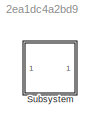
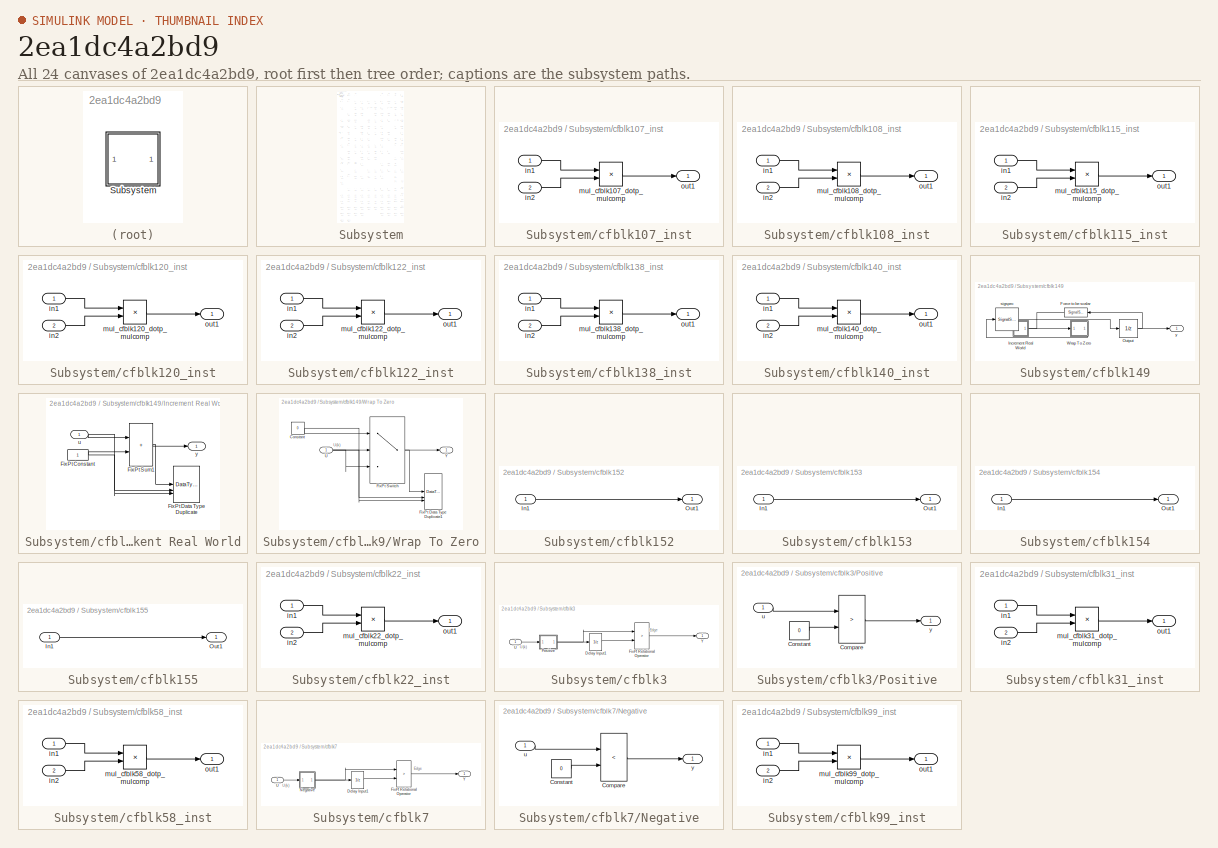
[diagram: thumbnail index - all 24 canvases of the model, root first then tree order]
MODEL slx_2ea1dc4a2bd9
KIND model
CONFIG AbsTol = auto
CONFIG EnableMultiTasking = off
CONFIG FixedStep = auto
CONFIG MaxStep = auto
CONFIG MinStep = auto
CONFIG RelTol = 1e-3
CONFIG SampleTimeConstraint = Unconstrained
CONFIG SolverName = VariableStepAuto
CONFIG StartTime = 0.0
CONFIG StopTime = 10.0
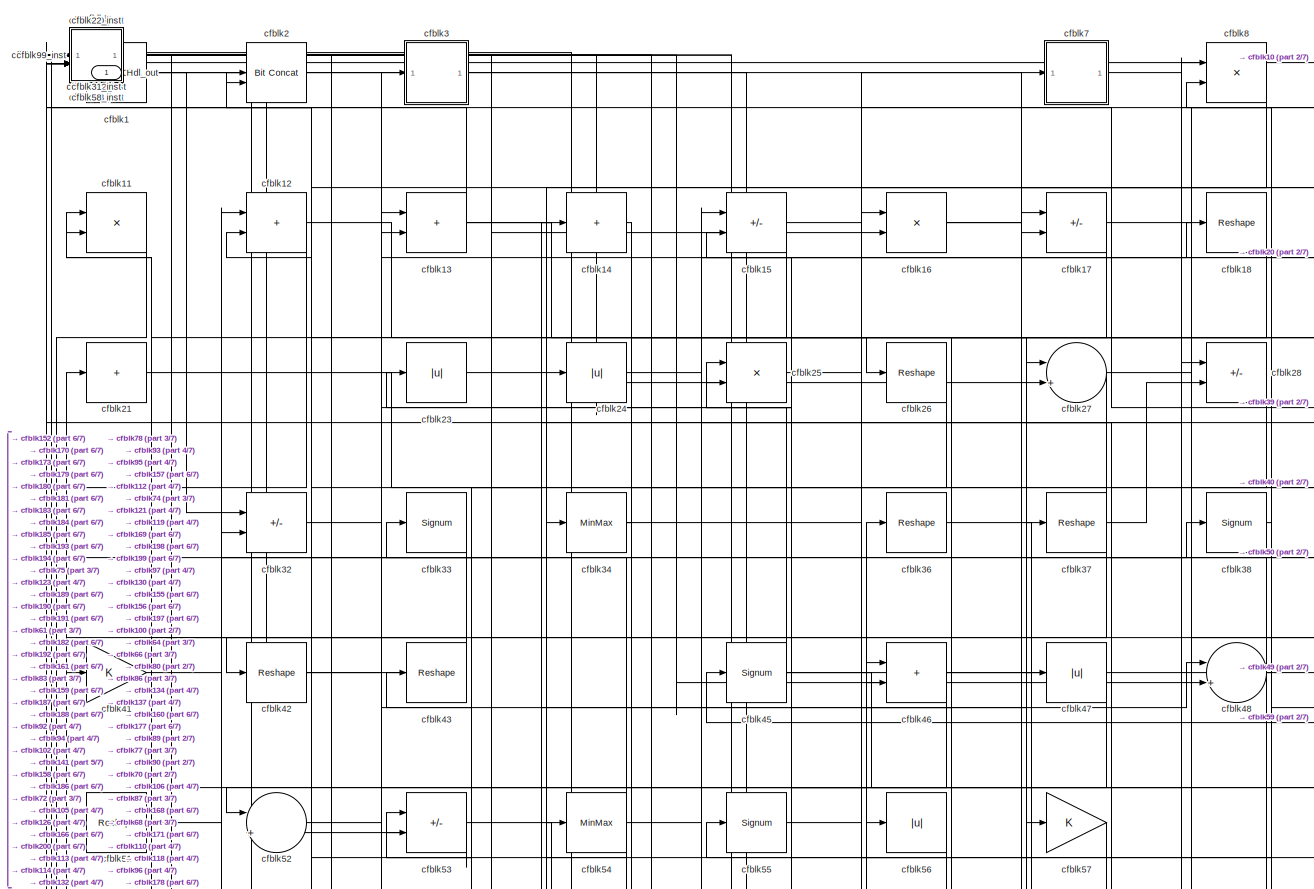
[diagram: Subsystem - part 1/7, full width, top band]
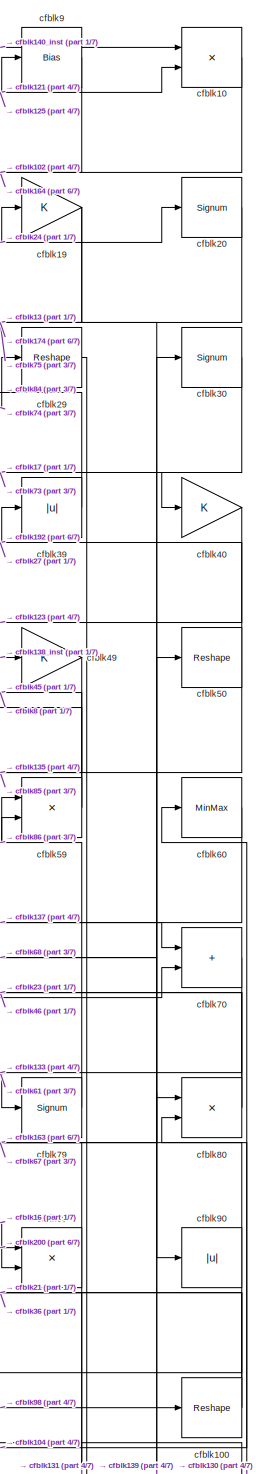
[diagram: Subsystem - part 2/7, top right region]
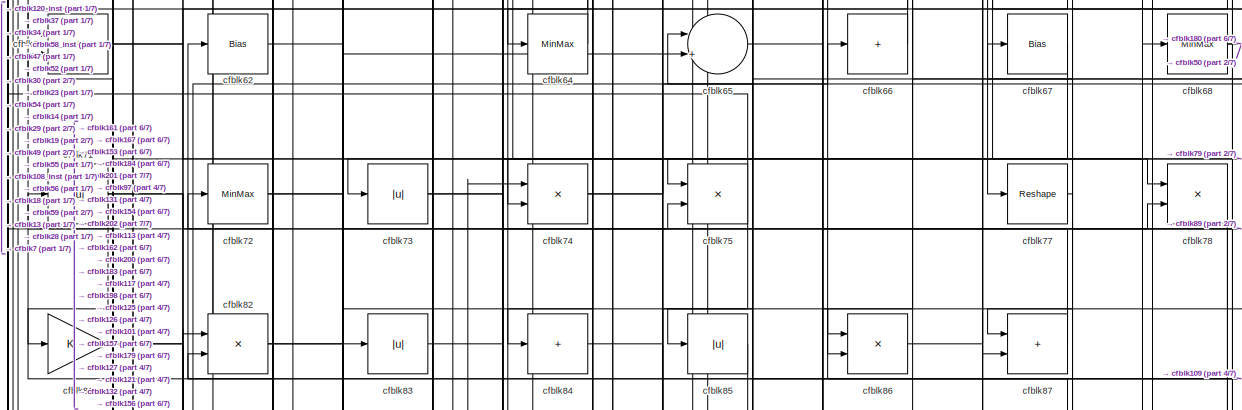
[diagram: Subsystem - part 3/7, full width, middle band]
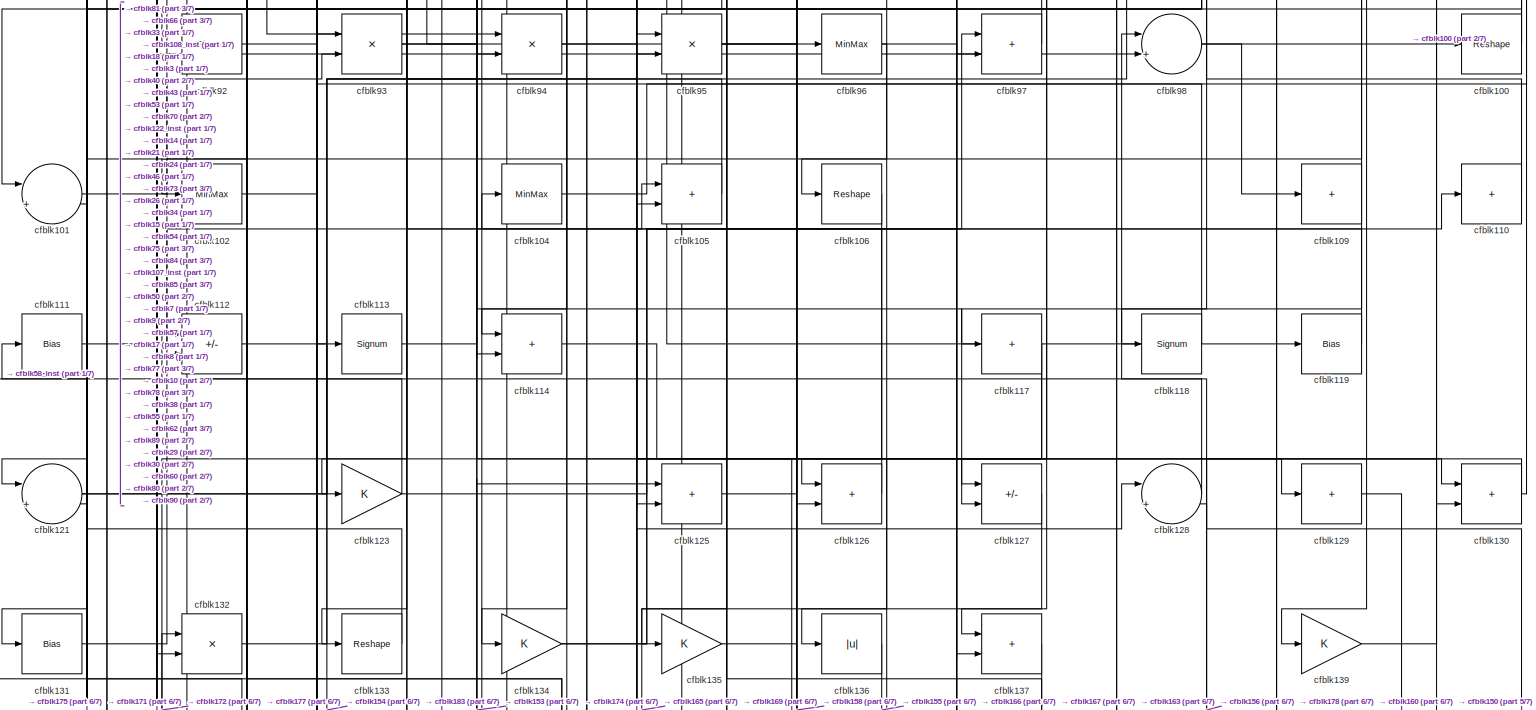
[diagram: Subsystem - part 4/7, full width, middle band]
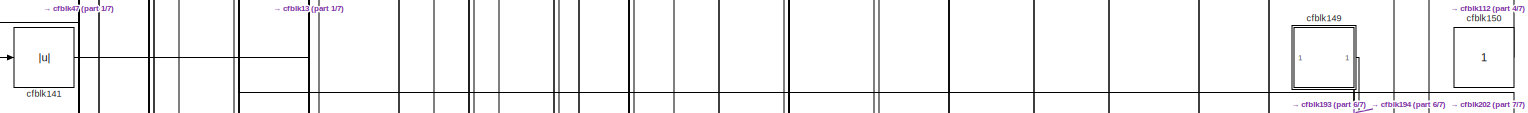
[diagram: Subsystem - part 5/7, full width, bottom band]
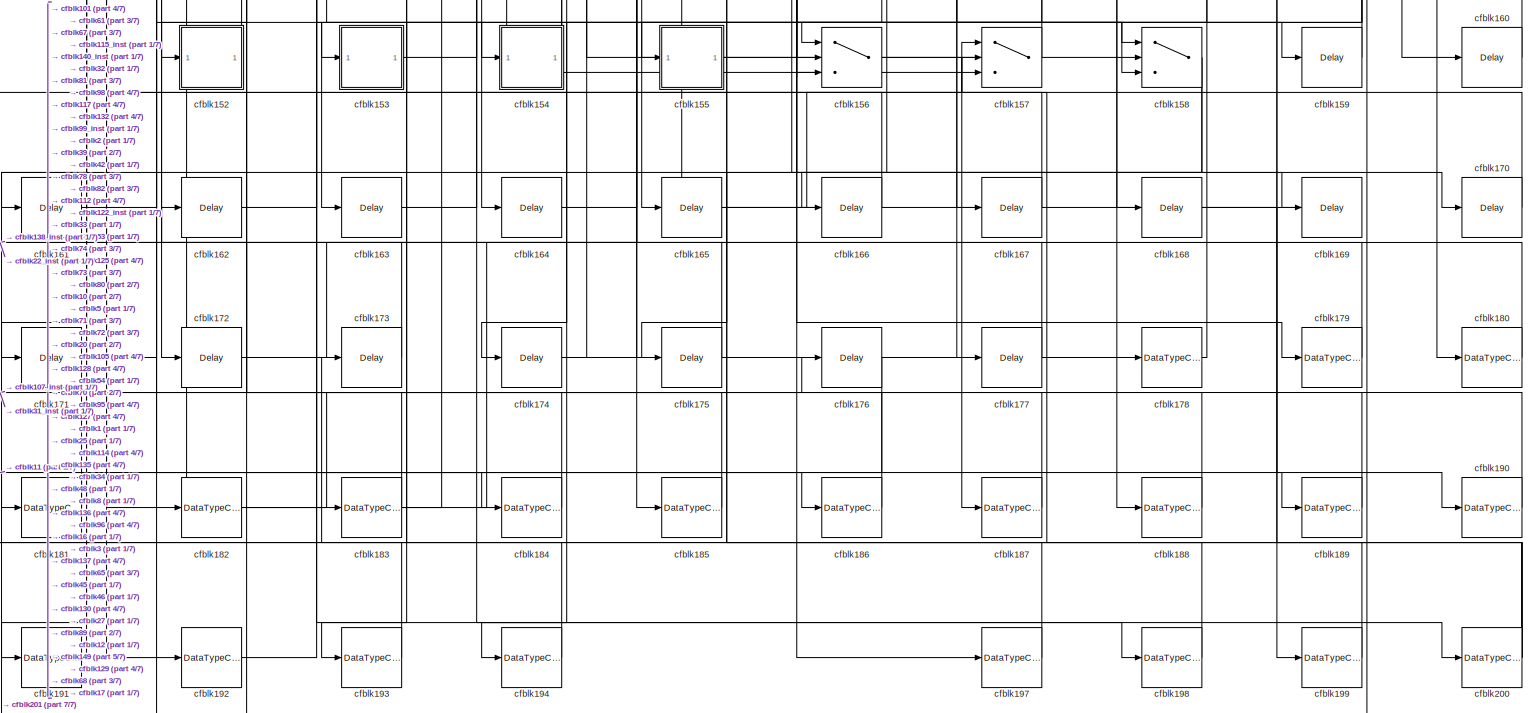
[diagram: Subsystem - part 6/7, full width, bottom band]
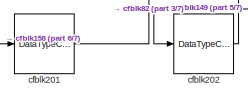
[diagram: Subsystem - part 7/7, bottom left region]
BLOCK [SubSystem] Subsystem
BLOCK [Outport] Subsystem/Hdl_out
  OutDataTypeStr = uint8
  SampleTime = 1
BLOCK [Reference] Subsystem/cfblk1  REF=simulink/Logic and Bit
Operations/Detect
Change
  LibrarySourceBlock = hdlsllib/Logic and Bit\nOperations/Detect\nChange
  SourceBlock = simulink/Logic and Bit\nOperations/Detect\nChange
  SourceType = Detect Change
BLOCK [Product] Subsystem/cfblk10
  Inputs = */
  OutDataTypeStr = uint8
  RndMeth = Zero
  SaturateOnIntegerOverflow = on
BLOCK [Reshape] Subsystem/cfblk100
BLOCK [Sum] Subsystem/cfblk101
  Inputs = |++
  OutDataTypeStr = uint8
BLOCK [MinMax] Subsystem/cfblk102
  OutDataTypeStr = uint8
BLOCK [MinMax] Subsystem/cfblk104
  OutDataTypeStr = uint8
BLOCK [Sum] Subsystem/cfblk105
  IconShape = rectangular
  OutDataTypeStr = uint8
BLOCK [Reshape] Subsystem/cfblk106
BLOCK [SubSystem] Subsystem/cfblk107_inst
BLOCK [Inport] Subsystem/cfblk107_inst/in1
  OutDataTypeStr = uint8
  SampleTime = 1
BLOCK [Inport] Subsystem/cfblk107_inst/in2
  OutDataTypeStr = uint8
  Port = 2
  SampleTime = 1
BLOCK [Product] Subsystem/cfblk107_inst/mul_cfblk107_dotp_mulcomp
  Inputs = **
  OutDataTypeStr = uint8
  SampleTime = 1
BLOCK [Outport] Subsystem/cfblk107_inst/out1
  OutDataTypeStr = uint8
  SampleTime = 1
BLOCK [SubSystem] Subsystem/cfblk108_inst
BLOCK [Inport] Subsystem/cfblk108_inst/in1
  OutDataTypeStr = uint8
  SampleTime = 1
BLOCK [Inport] Subsystem/cfblk108_inst/in2
  OutDataTypeStr = uint8
  Port = 2
  SampleTime = 1
BLOCK [Product] Subsystem/cfblk108_inst/mul_cfblk108_dotp_mulcomp
  Inputs = **
  OutDataTypeStr = uint8
  SampleTime = 1
BLOCK [Outport] Subsystem/cfblk108_inst/out1
  OutDataTypeStr = uint8
  SampleTime = 1
BLOCK [Sum] Subsystem/cfblk109
  IconShape = rectangular
  Inputs = +
  OutDataTypeStr = uint8
BLOCK [Product] Subsystem/cfblk11
  Inputs = */
  OutDataTypeStr = uint8
  RndMeth = Zero
  SaturateOnIntegerOverflow = on
BLOCK [Sum] Subsystem/cfblk110
  IconShape = rectangular
  Inputs = +
  OutDataTypeStr = uint8
BLOCK [Bias] Subsystem/cfblk111
  Bias = 0.0
  SaturateOnIntegerOverflow = off
BLOCK [Sum] Subsystem/cfblk112
  IconShape = rectangular
  Inputs = +-
  OutDataTypeStr = uint8
BLOCK [Signum] Subsystem/cfblk113
BLOCK [Sum] Subsystem/cfblk114
  IconShape = rectangular
  OutDataTypeStr = uint8
BLOCK [SubSystem] Subsystem/cfblk115_inst
BLOCK [Inport] Subsystem/cfblk115_inst/in1
  OutDataTypeStr = uint8
  SampleTime = 1
BLOCK [Inport] Subsystem/cfblk115_inst/in2
  OutDataTypeStr = uint8
  Port = 2
  SampleTime = 1
BLOCK [Product] Subsystem/cfblk115_inst/mul_cfblk115_dotp_mulcomp
  Inputs = **
  OutDataTypeStr = uint8
  SampleTime = 1
BLOCK [Outport] Subsystem/cfblk115_inst/out1
  OutDataTypeStr = uint8
  SampleTime = 1
BLOCK [Sum] Subsystem/cfblk117
  IconShape = rectangular
  Inputs = +
  OutDataTypeStr = uint8
BLOCK [Signum] Subsystem/cfblk118
BLOCK [Bias] Subsystem/cfblk119
  Bias = 0.0
  SaturateOnIntegerOverflow = off
BLOCK [Sum] Subsystem/cfblk12
  IconShape = rectangular
  OutDataTypeStr = uint8
BLOCK [SubSystem] Subsystem/cfblk120_inst
BLOCK [Inport] Subsystem/cfblk120_inst/in1
  OutDataTypeStr = uint8
  SampleTime = 1
BLOCK [Inport] Subsystem/cfblk120_inst/in2
  OutDataTypeStr = uint8
  Port = 2
  SampleTime = 1
BLOCK [Product] Subsystem/cfblk120_inst/mul_cfblk120_dotp_mulcomp
  Inputs = **
  OutDataTypeStr = uint8
  SampleTime = 1
BLOCK [Outport] Subsystem/cfblk120_inst/out1
  OutDataTypeStr = uint8
  SampleTime = 1
BLOCK [Sum] Subsystem/cfblk121
  Inputs = |++
  OutDataTypeStr = uint8
BLOCK [SubSystem] Subsystem/cfblk122_inst
BLOCK [Inport] Subsystem/cfblk122_inst/in1
  OutDataTypeStr = uint8
  SampleTime = 1
BLOCK [Inport] Subsystem/cfblk122_inst/in2
  OutDataTypeStr = uint8
  Port = 2
  SampleTime = 1
BLOCK [Product] Subsystem/cfblk122_inst/mul_cfblk122_dotp_mulcomp
  Inputs = **
  OutDataTypeStr = uint8
  SampleTime = 1
BLOCK [Outport] Subsystem/cfblk122_inst/out1
  OutDataTypeStr = uint8
  SampleTime = 1
BLOCK [Gain] Subsystem/cfblk123
  OutDataTypeStr = uint8
BLOCK [Sum] Subsystem/cfblk125
  IconShape = rectangular
  OutDataTypeStr = uint8
BLOCK [Sum] Subsystem/cfblk126
  IconShape = rectangular
  OutDataTypeStr = uint8
BLOCK [Sum] Subsystem/cfblk127
  IconShape = rectangular
  Inputs = +-
  OutDataTypeStr = uint8
BLOCK [Sum] Subsystem/cfblk128
  Inputs = |++
  OutDataTypeStr = uint8
BLOCK [Sum] Subsystem/cfblk129
  IconShape = rectangular
  Inputs = +
  OutDataTypeStr = uint8
BLOCK [Sum] Subsystem/cfblk13
  IconShape = rectangular
  OutDataTypeStr = uint8
BLOCK [Sum] Subsystem/cfblk130
  IconShape = rectangular
  OutDataTypeStr = uint8
BLOCK [Bias] Subsystem/cfblk131
  Bias = 0.0
  SaturateOnIntegerOverflow = off
BLOCK [Product] Subsystem/cfblk132
  Inputs = */
  OutDataTypeStr = uint8
  RndMeth = Zero
  SaturateOnIntegerOverflow = on
BLOCK [Reshape] Subsystem/cfblk133
BLOCK [Gain] Subsystem/cfblk134
  OutDataTypeStr = uint8
BLOCK [Gain] Subsystem/cfblk135
  OutDataTypeStr = uint8
BLOCK [Abs] Subsystem/cfblk136
  OutDataTypeStr = uint8
  SaturateOnIntegerOverflow = off
BLOCK [Sum] Subsystem/cfblk137
  IconShape = rectangular
  OutDataTypeStr = uint8
BLOCK [SubSystem] Subsystem/cfblk138_inst
BLOCK [Inport] Subsystem/cfblk138_inst/in1
  OutDataTypeStr = uint8
  SampleTime = 1
BLOCK [Inport] Subsystem/cfblk138_inst/in2
  OutDataTypeStr = uint8
  Port = 2
  SampleTime = 1
BLOCK [Product] Subsystem/cfblk138_inst/mul_cfblk138_dotp_mulcomp
  Inputs = **
  OutDataTypeStr = uint8
  SampleTime = 1
BLOCK [Outport] Subsystem/cfblk138_inst/out1
  OutDataTypeStr = uint8
  SampleTime = 1
BLOCK [Gain] Subsystem/cfblk139
  OutDataTypeStr = uint8
BLOCK [Sum] Subsystem/cfblk14
  IconShape = rectangular
  Inputs = +
  OutDataTypeStr = uint8
BLOCK [SubSystem] Subsystem/cfblk140_inst
BLOCK [Inport] Subsystem/cfblk140_inst/in1
  OutDataTypeStr = uint8
  SampleTime = 1
BLOCK [Inport] Subsystem/cfblk140_inst/in2
  OutDataTypeStr = uint8
  Port = 2
  SampleTime = 1
BLOCK [Product] Subsystem/cfblk140_inst/mul_cfblk140_dotp_mulcomp
  Inputs = **
  OutDataTypeStr = uint8
  SampleTime = 1
BLOCK [Outport] Subsystem/cfblk140_inst/out1
  OutDataTypeStr = uint8
  SampleTime = 1
BLOCK [Abs] Subsystem/cfblk141
  OutDataTypeStr = uint8
  SaturateOnIntegerOverflow = off
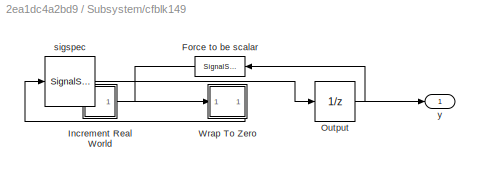
BLOCK [SubSystem] Subsystem/cfblk149
BLOCK [SignalSpecification] Subsystem/cfblk149/Force to be scalar
  Dimensions = 1
  DisableCoverage = on
BLOCK [SubSystem] Subsystem/cfblk149/Increment Real World
BLOCK [Constant] Subsystem/cfblk149/Increment Real World/FixPt Constant
  DisableCoverage = on
  OutDataTypeStr = Inherit: Inherit via back propagation
  SampleTime = -1
BLOCK [DataTypeDuplicate] Subsystem/cfblk149/Increment Real World/FixPt Data Type Duplicate
  DisableCoverage = on
  NumInputPorts = 3
BLOCK [Sum] Subsystem/cfblk149/Increment Real World/FixPt Sum1
  IconShape = rectangular
  InputSameDT = on
  LockScale = on
  OutDataTypeStr = Inherit: Inherit via back propagation
BLOCK [Inport] Subsystem/cfblk149/Increment Real World/u
  OutDataTypeStr = uint8
  SampleTime = 1
BLOCK [Outport] Subsystem/cfblk149/Increment Real World/y
  SampleTime = 1
BLOCK [UnitDelay] Subsystem/cfblk149/Output
  HasFrameUpgradeWarning = on
  InitialCondition = 0.0
  SampleTime = tsamp
BLOCK [SubSystem] Subsystem/cfblk149/Wrap To Zero
BLOCK [Constant] Subsystem/cfblk149/Wrap To Zero/Constant
  DisableCoverage = on
  OutDataTypeStr = Inherit: Inherit via back propagation
  SampleTime = -1
  Value = 0
BLOCK [DataTypeDuplicate] Subsystem/cfblk149/Wrap To Zero/FixPt Data Type Duplicate1
  DisableCoverage = on
  NumInputPorts = 3
BLOCK [Switch] Subsystem/cfblk149/Wrap To Zero/FixPt Switch
  Criteria = u2 > Threshold
  InputSameDT = off
  OutDataTypeStr = Inherit: Inherit via back propagation
  SaturateOnIntegerOverflow = off
  Threshold = Threshold
  ZeroCross = off
BLOCK [Inport] Subsystem/cfblk149/Wrap To Zero/U
  OutDataTypeStr = uint8
  SampleTime = 1
BLOCK [Outport] Subsystem/cfblk149/Wrap To Zero/Y
  SampleTime = 1
BLOCK [SignalSpecification] Subsystem/cfblk149/sigspec
  Dimensions = 1
  OutDataTypeStr = uint8
BLOCK [Outport] Subsystem/cfblk149/y
  SampleTime = 1
BLOCK [Sum] Subsystem/cfblk15
  IconShape = rectangular
  Inputs = +-
  OutDataTypeStr = uint8
BLOCK [Constant] Subsystem/cfblk150
  OutDataTypeStr = uint8
  SampleTime = -1
BLOCK [SubSystem] Subsystem/cfblk152
BLOCK [Inport] Subsystem/cfblk152/In1
  OutDataTypeStr = uint8
  PortDimensions = 1
  SampleTime = 1
BLOCK [Outport] Subsystem/cfblk152/Out1
  SampleTime = 1
BLOCK [SubSystem] Subsystem/cfblk153
BLOCK [Inport] Subsystem/cfblk153/In1
  OutDataTypeStr = uint8
  PortDimensions = 1
  SampleTime = 1
BLOCK [Outport] Subsystem/cfblk153/Out1
  SampleTime = 1
BLOCK [SubSystem] Subsystem/cfblk154
BLOCK [Inport] Subsystem/cfblk154/In1
  OutDataTypeStr = uint8
  PortDimensions = 1
  SampleTime = 1
BLOCK [Outport] Subsystem/cfblk154/Out1
  SampleTime = 1
BLOCK [SubSystem] Subsystem/cfblk155
BLOCK [Inport] Subsystem/cfblk155/In1
  OutDataTypeStr = uint8
  PortDimensions = 1
  SampleTime = 1
BLOCK [Outport] Subsystem/cfblk155/Out1
  SampleTime = 1
BLOCK [Switch] Subsystem/cfblk156
  InputSameDT = off
  OutDataTypeStr = uint8
  SaturateOnIntegerOverflow = off
BLOCK [Switch] Subsystem/cfblk157
  InputSameDT = off
  OutDataTypeStr = uint8
  SaturateOnIntegerOverflow = off
BLOCK [Switch] Subsystem/cfblk158
  InputSameDT = off
  OutDataTypeStr = uint8
  SaturateOnIntegerOverflow = off
BLOCK [Delay] Subsystem/cfblk159
  InputPortMap = u0
  SampleTime = 1
BLOCK [Product] Subsystem/cfblk16
  Inputs = */
  OutDataTypeStr = uint8
  RndMeth = Zero
  SaturateOnIntegerOverflow = on
BLOCK [Delay] Subsystem/cfblk160
  InputPortMap = u0
  SampleTime = 1
BLOCK [Delay] Subsystem/cfblk161
  InputPortMap = u0
  SampleTime = 1
BLOCK [Delay] Subsystem/cfblk162
  InputPortMap = u0
  SampleTime = 1
BLOCK [Delay] Subsystem/cfblk163
  InputPortMap = u0
  SampleTime = 1
BLOCK [Delay] Subsystem/cfblk164
  InputPortMap = u0
  SampleTime = 1
BLOCK [Delay] Subsystem/cfblk165
  InputPortMap = u0
  SampleTime = 1
BLOCK [Delay] Subsystem/cfblk166
  InputPortMap = u0
  SampleTime = 1
BLOCK [Delay] Subsystem/cfblk167
  InputPortMap = u0
  SampleTime = 1
BLOCK [Delay] Subsystem/cfblk168
  InputPortMap = u0
  SampleTime = 1
BLOCK [Delay] Subsystem/cfblk169
  InputPortMap = u0
  SampleTime = 1
BLOCK [Sum] Subsystem/cfblk17
  IconShape = rectangular
  Inputs = +-
  OutDataTypeStr = uint8
BLOCK [Delay] Subsystem/cfblk170
  InputPortMap = u0
  SampleTime = 1
BLOCK [Delay] Subsystem/cfblk171
  InputPortMap = u0
  SampleTime = 1
BLOCK [Delay] Subsystem/cfblk172
  InputPortMap = u0
  SampleTime = 1
BLOCK [Delay] Subsystem/cfblk173
  InputPortMap = u0
  SampleTime = 1
BLOCK [Delay] Subsystem/cfblk174
  InputPortMap = u0
  SampleTime = 1
BLOCK [Delay] Subsystem/cfblk175
  InputPortMap = u0
  SampleTime = 1
BLOCK [Delay] Subsystem/cfblk176
  InputPortMap = u0
  SampleTime = 1
BLOCK [Delay] Subsystem/cfblk177
  InputPortMap = u0
  SampleTime = 1
BLOCK [DataTypeConversion] Subsystem/cfblk178
  OutDataTypeStr = uint8
  RndMeth = Floor
  SaturateOnIntegerOverflow = off
BLOCK [DataTypeConversion] Subsystem/cfblk179
  OutDataTypeStr = uint8
  RndMeth = Floor
  SaturateOnIntegerOverflow = off
BLOCK [Reshape] Subsystem/cfblk18
BLOCK [DataTypeConversion] Subsystem/cfblk180
  OutDataTypeStr = uint8
  RndMeth = Floor
  SaturateOnIntegerOverflow = off
BLOCK [DataTypeConversion] Subsystem/cfblk181
  OutDataTypeStr = uint8
  RndMeth = Floor
  SaturateOnIntegerOverflow = off
BLOCK [DataTypeConversion] Subsystem/cfblk182
  OutDataTypeStr = uint8
  RndMeth = Floor
  SaturateOnIntegerOverflow = off
BLOCK [DataTypeConversion] Subsystem/cfblk183
  OutDataTypeStr = uint8
  RndMeth = Floor
  SaturateOnIntegerOverflow = off
BLOCK [DataTypeConversion] Subsystem/cfblk184
  OutDataTypeStr = uint8
  RndMeth = Floor
  SaturateOnIntegerOverflow = off
BLOCK [DataTypeConversion] Subsystem/cfblk185
  OutDataTypeStr = uint8
  RndMeth = Floor
  SaturateOnIntegerOverflow = off
BLOCK [DataTypeConversion] Subsystem/cfblk186
  OutDataTypeStr = uint8
  RndMeth = Floor
  SaturateOnIntegerOverflow = off
BLOCK [DataTypeConversion] Subsystem/cfblk187
  OutDataTypeStr = uint8
  RndMeth = Floor
  SaturateOnIntegerOverflow = off
BLOCK [DataTypeConversion] Subsystem/cfblk188
  OutDataTypeStr = uint8
  RndMeth = Floor
  SaturateOnIntegerOverflow = off
BLOCK [DataTypeConversion] Subsystem/cfblk189
  OutDataTypeStr = uint8
  RndMeth = Floor
  SaturateOnIntegerOverflow = off
BLOCK [Gain] Subsystem/cfblk19
  OutDataTypeStr = uint8
BLOCK [DataTypeConversion] Subsystem/cfblk190
  OutDataTypeStr = uint8
  RndMeth = Floor
  SaturateOnIntegerOverflow = off
BLOCK [DataTypeConversion] Subsystem/cfblk191
  OutDataTypeStr = uint8
  RndMeth = Floor
  SaturateOnIntegerOverflow = off
BLOCK [DataTypeConversion] Subsystem/cfblk192
  OutDataTypeStr = uint8
  RndMeth = Floor
  SaturateOnIntegerOverflow = off
BLOCK [DataTypeConversion] Subsystem/cfblk193
  OutDataTypeStr = uint8
  RndMeth = Floor
  SaturateOnIntegerOverflow = off
BLOCK [DataTypeConversion] Subsystem/cfblk194
  OutDataTypeStr = uint8
  RndMeth = Floor
  SaturateOnIntegerOverflow = off
BLOCK [DataTypeConversion] Subsystem/cfblk197
  OutDataTypeStr = uint8
  RndMeth = Floor
  SaturateOnIntegerOverflow = off
BLOCK [DataTypeConversion] Subsystem/cfblk198
  OutDataTypeStr = uint8
  RndMeth = Floor
  SaturateOnIntegerOverflow = off
BLOCK [DataTypeConversion] Subsystem/cfblk199
  OutDataTypeStr = uint8
  RndMeth = Floor
  SaturateOnIntegerOverflow = off
BLOCK [Reference] Subsystem/cfblk2  REF=hdlsllib/Logic and Bit
Operations/Bit Concat
  SourceBlock = hdlsllib/Logic and Bit\nOperations/Bit Concat
  SourceType = Bit Concat
BLOCK [Signum] Subsystem/cfblk20
BLOCK [DataTypeConversion] Subsystem/cfblk200
  OutDataTypeStr = uint8
  RndMeth = Floor
  SaturateOnIntegerOverflow = off
BLOCK [DataTypeConversion] Subsystem/cfblk201
  OutDataTypeStr = uint8
  RndMeth = Floor
  SaturateOnIntegerOverflow = off
BLOCK [DataTypeConversion] Subsystem/cfblk202
  OutDataTypeStr = uint8
  RndMeth = Floor
  SaturateOnIntegerOverflow = off
BLOCK [Sum] Subsystem/cfblk21
  IconShape = rectangular
  Inputs = +
  OutDataTypeStr = uint8
BLOCK [SubSystem] Subsystem/cfblk22_inst
BLOCK [Inport] Subsystem/cfblk22_inst/in1
  OutDataTypeStr = uint8
  SampleTime = 1
BLOCK [Inport] Subsystem/cfblk22_inst/in2
  OutDataTypeStr = uint8
  Port = 2
  SampleTime = 1
BLOCK [Product] Subsystem/cfblk22_inst/mul_cfblk22_dotp_mulcomp
  Inputs = **
  OutDataTypeStr = uint8
  SampleTime = 1
BLOCK [Outport] Subsystem/cfblk22_inst/out1
  OutDataTypeStr = uint8
  SampleTime = 1
BLOCK [Abs] Subsystem/cfblk23
  OutDataTypeStr = uint8
  SaturateOnIntegerOverflow = off
BLOCK [Abs] Subsystem/cfblk24
  OutDataTypeStr = uint8
  SaturateOnIntegerOverflow = off
BLOCK [Product] Subsystem/cfblk25
  Inputs = */
  OutDataTypeStr = uint8
  RndMeth = Zero
  SaturateOnIntegerOverflow = on
BLOCK [Reshape] Subsystem/cfblk26
BLOCK [Sum] Subsystem/cfblk27
  Inputs = |++
  OutDataTypeStr = uint8
BLOCK [Sum] Subsystem/cfblk28
  IconShape = rectangular
  Inputs = +-
  OutDataTypeStr = uint8
BLOCK [Reshape] Subsystem/cfblk29
BLOCK [SubSystem] Subsystem/cfblk3
BLOCK [UnitDelay] Subsystem/cfblk3/Delay Input1
  Description = Store in Global RAM
  DisableCoverage = on
  HasFrameUpgradeWarning = on
  InitialCondition = vinit
  SampleTime = -1
BLOCK [RelationalOperator] Subsystem/cfblk3/FixPt Relational Operator
  InputSameDT = off
  Operator = >
  OutDataTypeStr = fixdt(0, 8)
  ZeroCross = off
BLOCK [SubSystem] Subsystem/cfblk3/Positive
BLOCK [RelationalOperator] Subsystem/cfblk3/Positive/Compare
  Operator = >
  OutDataTypeStr = boolean
  ZeroCross = off
BLOCK [Constant] Subsystem/cfblk3/Positive/Constant
  DisableCoverage = on
  OutDataTypeStr = Inherit: Inherit via back propagation
  PreserveConstantTs = on
  SampleTime = -1
  Value = 0
BLOCK [Inport] Subsystem/cfblk3/Positive/u
  OutDataTypeStr = uint8
  SampleTime = 1
BLOCK [Outport] Subsystem/cfblk3/Positive/y
  SampleTime = 1
BLOCK [Inport] Subsystem/cfblk3/U
  OutDataTypeStr = uint8
  SampleTime = 1
BLOCK [Outport] Subsystem/cfblk3/Y
  SampleTime = 1
BLOCK [Signum] Subsystem/cfblk30
BLOCK [SubSystem] Subsystem/cfblk31_inst
BLOCK [Inport] Subsystem/cfblk31_inst/in1
  OutDataTypeStr = uint8
  SampleTime = 1
BLOCK [Inport] Subsystem/cfblk31_inst/in2
  OutDataTypeStr = uint8
  Port = 2
  SampleTime = 1
BLOCK [Product] Subsystem/cfblk31_inst/mul_cfblk31_dotp_mulcomp
  Inputs = **
  OutDataTypeStr = uint8
  SampleTime = 1
BLOCK [Outport] Subsystem/cfblk31_inst/out1
  OutDataTypeStr = uint8
  SampleTime = 1
BLOCK [Sum] Subsystem/cfblk32
  IconShape = rectangular
  Inputs = +-
  OutDataTypeStr = uint8
BLOCK [Signum] Subsystem/cfblk33
BLOCK [MinMax] Subsystem/cfblk34
  OutDataTypeStr = uint8
BLOCK [Reshape] Subsystem/cfblk36
BLOCK [Reshape] Subsystem/cfblk37
BLOCK [Signum] Subsystem/cfblk38
BLOCK [Abs] Subsystem/cfblk39
  OutDataTypeStr = uint8
  SaturateOnIntegerOverflow = off
BLOCK [Gain] Subsystem/cfblk40
  OutDataTypeStr = uint8
BLOCK [Gain] Subsystem/cfblk41
  OutDataTypeStr = uint8
BLOCK [Reshape] Subsystem/cfblk42
BLOCK [Reshape] Subsystem/cfblk43
BLOCK [Signum] Subsystem/cfblk45
BLOCK [Sum] Subsystem/cfblk46
  IconShape = rectangular
  OutDataTypeStr = uint8
BLOCK [Abs] Subsystem/cfblk47
  OutDataTypeStr = uint8
  SaturateOnIntegerOverflow = off
BLOCK [Sum] Subsystem/cfblk48
  Inputs = |++
  OutDataTypeStr = uint8
BLOCK [Gain] Subsystem/cfblk49
  OutDataTypeStr = uint8
BLOCK [Constant] Subsystem/cfblk5
  OutDataTypeStr = uint8
  SampleTime = 1
  Value = 0
BLOCK [Reshape] Subsystem/cfblk50
BLOCK [Reshape] Subsystem/cfblk51
BLOCK [Sum] Subsystem/cfblk52
  Inputs = |++
  OutDataTypeStr = uint8
BLOCK [Sum] Subsystem/cfblk53
  IconShape = rectangular
  Inputs = +-
  OutDataTypeStr = uint8
BLOCK [MinMax] Subsystem/cfblk54
  OutDataTypeStr = uint8
BLOCK [Signum] Subsystem/cfblk55
BLOCK [Abs] Subsystem/cfblk56
  OutDataTypeStr = uint8
  SaturateOnIntegerOverflow = off
BLOCK [Gain] Subsystem/cfblk57
  OutDataTypeStr = uint8
BLOCK [SubSystem] Subsystem/cfblk58_inst
BLOCK [Inport] Subsystem/cfblk58_inst/in1
  OutDataTypeStr = uint8
  SampleTime = 1
BLOCK [Inport] Subsystem/cfblk58_inst/in2
  OutDataTypeStr = uint8
  Port = 2
  SampleTime = 1
BLOCK [Product] Subsystem/cfblk58_inst/mul_cfblk58_dotp_mulcomp
  Inputs = **
  OutDataTypeStr = uint8
  SampleTime = 1
BLOCK [Outport] Subsystem/cfblk58_inst/out1
  OutDataTypeStr = uint8
  SampleTime = 1
BLOCK [Product] Subsystem/cfblk59
  Inputs = */
  OutDataTypeStr = uint8
  RndMeth = Zero
  SaturateOnIntegerOverflow = on
BLOCK [MinMax] Subsystem/cfblk60
  OutDataTypeStr = uint8
BLOCK [Sum] Subsystem/cfblk61
  IconShape = rectangular
  OutDataTypeStr = uint8
BLOCK [Bias] Subsystem/cfblk62
  Bias = 0.0
  SaturateOnIntegerOverflow = off
BLOCK [MinMax] Subsystem/cfblk64
  OutDataTypeStr = uint8
BLOCK [Sum] Subsystem/cfblk65
  Inputs = |++
  OutDataTypeStr = uint8
BLOCK [Sum] Subsystem/cfblk66
  IconShape = rectangular
  Inputs = +
  OutDataTypeStr = uint8
BLOCK [Bias] Subsystem/cfblk67
  Bias = 0.0
  SaturateOnIntegerOverflow = off
BLOCK [MinMax] Subsystem/cfblk68
  OutDataTypeStr = uint8
BLOCK [SubSystem] Subsystem/cfblk7
BLOCK [UnitDelay] Subsystem/cfblk7/Delay Input1
  Description = Store in Global RAM
  DisableCoverage = on
  HasFrameUpgradeWarning = on
  InitialCondition = vinit
  SampleTime = -1
BLOCK [RelationalOperator] Subsystem/cfblk7/FixPt Relational Operator
  InputSameDT = off
  Operator = >
  OutDataTypeStr = fixdt(0, 8)
  ZeroCross = off
BLOCK [SubSystem] Subsystem/cfblk7/Negative
BLOCK [RelationalOperator] Subsystem/cfblk7/Negative/Compare
  Operator = <
  OutDataTypeStr = boolean
  ZeroCross = off
BLOCK [Constant] Subsystem/cfblk7/Negative/Constant
  DisableCoverage = on
  OutDataTypeStr = Inherit: Inherit via back propagation
  PreserveConstantTs = on
  SampleTime = -1
  Value = 0
BLOCK [Inport] Subsystem/cfblk7/Negative/u
  OutDataTypeStr = uint8
  SampleTime = 1
BLOCK [Outport] Subsystem/cfblk7/Negative/y
  SampleTime = 1
BLOCK [Inport] Subsystem/cfblk7/U
  OutDataTypeStr = uint8
  SampleTime = 1
BLOCK [Outport] Subsystem/cfblk7/Y
  SampleTime = 1
BLOCK [Sum] Subsystem/cfblk70
  IconShape = rectangular
  OutDataTypeStr = uint8
BLOCK [Abs] Subsystem/cfblk71
  OutDataTypeStr = uint8
  SaturateOnIntegerOverflow = off
BLOCK [MinMax] Subsystem/cfblk72
  OutDataTypeStr = uint8
BLOCK [Abs] Subsystem/cfblk73
  OutDataTypeStr = uint8
  SaturateOnIntegerOverflow = off
BLOCK [Product] Subsystem/cfblk74
  Inputs = */
  OutDataTypeStr = uint8
  RndMeth = Zero
  SaturateOnIntegerOverflow = on
BLOCK [Product] Subsystem/cfblk75
  Inputs = */
  OutDataTypeStr = uint8
  RndMeth = Zero
  SaturateOnIntegerOverflow = on
BLOCK [Reshape] Subsystem/cfblk77
BLOCK [Product] Subsystem/cfblk78
  Inputs = */
  OutDataTypeStr = uint8
  RndMeth = Zero
  SaturateOnIntegerOverflow = on
BLOCK [Signum] Subsystem/cfblk79
BLOCK [Product] Subsystem/cfblk8
  Inputs = */
  OutDataTypeStr = uint8
  RndMeth = Zero
  SaturateOnIntegerOverflow = on
BLOCK [Product] Subsystem/cfblk80
  Inputs = */
  OutDataTypeStr = uint8
  RndMeth = Zero
  SaturateOnIntegerOverflow = on
BLOCK [Gain] Subsystem/cfblk81
  OutDataTypeStr = uint8
BLOCK [Product] Subsystem/cfblk82
  Inputs = */
  OutDataTypeStr = uint8
  RndMeth = Zero
  SaturateOnIntegerOverflow = on
BLOCK [Abs] Subsystem/cfblk83
  OutDataTypeStr = uint8
  SaturateOnIntegerOverflow = off
BLOCK [Sum] Subsystem/cfblk84
  IconShape = rectangular
  Inputs = +
  OutDataTypeStr = uint8
BLOCK [Abs] Subsystem/cfblk85
  OutDataTypeStr = uint8
  SaturateOnIntegerOverflow = off
BLOCK [Product] Subsystem/cfblk86
  Inputs = */
  OutDataTypeStr = uint8
  RndMeth = Zero
  SaturateOnIntegerOverflow = on
BLOCK [Sum] Subsystem/cfblk87
  IconShape = rectangular
  OutDataTypeStr = uint8
BLOCK [Product] Subsystem/cfblk89
  Inputs = */
  OutDataTypeStr = uint8
  RndMeth = Zero
  SaturateOnIntegerOverflow = on
BLOCK [Bias] Subsystem/cfblk9
  Bias = 0.0
  SaturateOnIntegerOverflow = off
BLOCK [Abs] Subsystem/cfblk90
  OutDataTypeStr = uint8
  SaturateOnIntegerOverflow = off
BLOCK [Signum] Subsystem/cfblk92
BLOCK [Product] Subsystem/cfblk93
  Inputs = */
  OutDataTypeStr = uint8
  RndMeth = Zero
  SaturateOnIntegerOverflow = on
BLOCK [Product] Subsystem/cfblk94
  Inputs = */
  OutDataTypeStr = uint8
  RndMeth = Zero
  SaturateOnIntegerOverflow = on
BLOCK [Product] Subsystem/cfblk95
  Inputs = */
  OutDataTypeStr = uint8
  RndMeth = Zero
  SaturateOnIntegerOverflow = on
BLOCK [MinMax] Subsystem/cfblk96
  OutDataTypeStr = uint8
BLOCK [Sum] Subsystem/cfblk97
  IconShape = rectangular
  OutDataTypeStr = uint8
BLOCK [Sum] Subsystem/cfblk98
  Inputs = |++
  OutDataTypeStr = uint8
BLOCK [SubSystem] Subsystem/cfblk99_inst
BLOCK [Inport] Subsystem/cfblk99_inst/in1
  OutDataTypeStr = uint8
  SampleTime = 1
BLOCK [Inport] Subsystem/cfblk99_inst/in2
  OutDataTypeStr = uint8
  Port = 2
  SampleTime = 1
BLOCK [Product] Subsystem/cfblk99_inst/mul_cfblk99_dotp_mulcomp
  Inputs = **
  OutDataTypeStr = uint8
  SampleTime = 1
BLOCK [Outport] Subsystem/cfblk99_inst/out1
  OutDataTypeStr = uint8
  SampleTime = 1
ANNOTATION Subsystem/cfblk149/Wrap To Zero: U(k)
ANNOTATION Subsystem/cfblk3: Edge
ANNOTATION Subsystem/cfblk3: U(k)
ANNOTATION Subsystem/cfblk7: Edge
ANNOTATION Subsystem/cfblk7: U(k)
NET Subsystem/cfblk100:1 -> Subsystem/cfblk21:1, Subsystem/cfblk36:1
LINE Subsystem/cfblk101:1 -> Subsystem/cfblk93:2
LINE Subsystem/cfblk102:1 -> Subsystem/cfblk3:1
LINE Subsystem/cfblk104:1 -> Subsystem/cfblk80:2
LINE Subsystem/cfblk105:1 -> Subsystem/cfblk53:1
LINE Subsystem/cfblk106:1 -> Subsystem/cfblk126:1
LINE Subsystem/cfblk107_inst/in1:1 -> Subsystem/cfblk107_inst/mul_cfblk107_dotp_mulcomp:1
LINE Subsystem/cfblk107_inst/in2:1 -> Subsystem/cfblk107_inst/mul_cfblk107_dotp_mulcomp:2
LINE Subsystem/cfblk107_inst/mul_cfblk107_dotp_mulcomp:1 -> Subsystem/cfblk107_inst/out1:1
NET Subsystem/cfblk107_inst:1 -> Subsystem/cfblk119:1, Subsystem/cfblk27:2
LINE Subsystem/cfblk108_inst/in1:1 -> Subsystem/cfblk108_inst/mul_cfblk108_dotp_mulcomp:1
LINE Subsystem/cfblk108_inst/in2:1 -> Subsystem/cfblk108_inst/mul_cfblk108_dotp_mulcomp:2
LINE Subsystem/cfblk108_inst/mul_cfblk108_dotp_mulcomp:1 -> Subsystem/cfblk108_inst/out1:1
LINE Subsystem/cfblk108_inst:1 -> Subsystem/cfblk94:1
NET Subsystem/cfblk109:1 -> Subsystem/cfblk127:2, Subsystem/cfblk62:1
LINE Subsystem/cfblk10:1 -> Subsystem/cfblk164:1
LINE Subsystem/cfblk110:1 -> Subsystem/cfblk55:1
LINE Subsystem/cfblk111:1 -> Subsystem/cfblk105:1
LINE Subsystem/cfblk112:1 -> Subsystem/cfblk154:1
LINE Subsystem/cfblk113:1 -> Subsystem/cfblk24:1
LINE Subsystem/cfblk114:1 -> Subsystem/cfblk169:1
LINE Subsystem/cfblk115_inst/in1:1 -> Subsystem/cfblk115_inst/mul_cfblk115_dotp_mulcomp:1
LINE Subsystem/cfblk115_inst/in2:1 -> Subsystem/cfblk115_inst/mul_cfblk115_dotp_mulcomp:2
LINE Subsystem/cfblk115_inst/mul_cfblk115_dotp_mulcomp:1 -> Subsystem/cfblk115_inst/out1:1
LINE Subsystem/cfblk115_inst:1 -> Subsystem/cfblk192:1
NET Subsystem/cfblk117:1 -> Subsystem/cfblk136:1, Subsystem/cfblk172:1
LINE Subsystem/cfblk118:1 -> Subsystem/cfblk93:1
LINE Subsystem/cfblk119:1 -> Subsystem/cfblk104:1
LINE Subsystem/cfblk11:1 -> Subsystem/cfblk189:1
LINE Subsystem/cfblk120_inst/in1:1 -> Subsystem/cfblk120_inst/mul_cfblk120_dotp_mulcomp:1
LINE Subsystem/cfblk120_inst/in2:1 -> Subsystem/cfblk120_inst/mul_cfblk120_dotp_mulcomp:2
LINE Subsystem/cfblk120_inst/mul_cfblk120_dotp_mulcomp:1 -> Subsystem/cfblk120_inst/out1:1
LINE Subsystem/cfblk120_inst:1 -> Subsystem/cfblk16:2
NET Subsystem/cfblk121:1 -> Subsystem/cfblk10:2, Subsystem/cfblk15:1
LINE Subsystem/cfblk122_inst/in1:1 -> Subsystem/cfblk122_inst/mul_cfblk122_dotp_mulcomp:1
LINE Subsystem/cfblk122_inst/in2:1 -> Subsystem/cfblk122_inst/mul_cfblk122_dotp_mulcomp:2
LINE Subsystem/cfblk122_inst/mul_cfblk122_dotp_mulcomp:1 -> Subsystem/cfblk122_inst/out1:1
LINE Subsystem/cfblk122_inst:1 -> Subsystem/cfblk96:1
NET Subsystem/cfblk123:1 -> Subsystem/cfblk110:1, Subsystem/cfblk58_inst:1
LINE Subsystem/cfblk125:1 -> Subsystem/cfblk9:1
LINE Subsystem/cfblk126:1 -> Subsystem/cfblk43:1
LINE Subsystem/cfblk127:1 -> Subsystem/cfblk165:1
LINE Subsystem/cfblk128:1 -> Subsystem/cfblk98:1
LINE Subsystem/cfblk129:1 -> Subsystem/cfblk160:1
NET Subsystem/cfblk12:1 -> Subsystem/cfblk26:1, Subsystem/cfblk51:1
NET Subsystem/cfblk130:1 -> Subsystem/cfblk156:1, Subsystem/cfblk60:1
LINE Subsystem/cfblk131:1 -> Subsystem/cfblk66:1
LINE Subsystem/cfblk132:1 -> Subsystem/cfblk14:1
LINE Subsystem/cfblk133:1 -> Subsystem/cfblk111:1
NET Subsystem/cfblk134:1 -> Subsystem/cfblk17:2, Subsystem/cfblk97:1
LINE Subsystem/cfblk135:1 -> Subsystem/cfblk158:3
LINE Subsystem/cfblk136:1 -> Subsystem/cfblk155:1
LINE Subsystem/cfblk137:1 -> Subsystem/cfblk163:1
LINE Subsystem/cfblk138_inst/in1:1 -> Subsystem/cfblk138_inst/mul_cfblk138_dotp_mulcomp:1
LINE Subsystem/cfblk138_inst/in2:1 -> Subsystem/cfblk138_inst/mul_cfblk138_dotp_mulcomp:2
LINE Subsystem/cfblk138_inst/mul_cfblk138_dotp_mulcomp:1 -> Subsystem/cfblk138_inst/out1:1
NET Subsystem/cfblk138_inst:1 -> Subsystem/cfblk48:2, Subsystem/cfblk49:1
LINE Subsystem/cfblk139:1 -> Subsystem/cfblk100:1
NET Subsystem/cfblk13:1 -> Subsystem/cfblk122_inst:2, Subsystem/cfblk77:1, Subsystem/cfblk90:1
LINE Subsystem/cfblk140_inst/in1:1 -> Subsystem/cfblk140_inst/mul_cfblk140_dotp_mulcomp:1
LINE Subsystem/cfblk140_inst/in2:1 -> Subsystem/cfblk140_inst/mul_cfblk140_dotp_mulcomp:2
LINE Subsystem/cfblk140_inst/mul_cfblk140_dotp_mulcomp:1 -> Subsystem/cfblk140_inst/out1:1
NET Subsystem/cfblk140_inst:1 -> Subsystem/cfblk10:1, Subsystem/cfblk138_inst:1, Subsystem/cfblk182:1
LINE Subsystem/cfblk141:1 -> Subsystem/cfblk13:2
NET Subsystem/cfblk149:1 -> Subsystem/cfblk193:1, Subsystem/cfblk194:1, Subsystem/cfblk202:1
LINE Subsystem/cfblk14:1 -> Subsystem/cfblk74:2
LINE Subsystem/cfblk150:1 -> Subsystem/cfblk112:1
LINE Subsystem/cfblk152/In1:1 -> Subsystem/cfblk152/Out1:1
LINE Subsystem/cfblk152:1 -> Subsystem/cfblk99_inst:1
LINE Subsystem/cfblk153/In1:1 -> Subsystem/cfblk153/Out1:1
LINE Subsystem/cfblk153:1 -> Subsystem/cfblk125:1
LINE Subsystem/cfblk154/In1:1 -> Subsystem/cfblk154/Out1:1
NET Subsystem/cfblk154:1 -> Subsystem/cfblk71:1, Subsystem/cfblk72:1
LINE Subsystem/cfblk155/In1:1 -> Subsystem/cfblk155/Out1:1
LINE Subsystem/cfblk155:1 -> Subsystem/cfblk48:1
LINE Subsystem/cfblk156:1 -> Subsystem/cfblk187:1
LINE Subsystem/cfblk157:1 -> Subsystem/cfblk65:1
NET Subsystem/cfblk158:1 -> Subsystem/cfblk175:1, Subsystem/cfblk201:1
LINE Subsystem/cfblk159:1 -> Subsystem/cfblk12:2
NET Subsystem/cfblk15:1 -> Subsystem/cfblk130:1, Subsystem/cfblk94:2
LINE Subsystem/cfblk160:1 -> Subsystem/cfblk17:1
LINE Subsystem/cfblk161:1 -> Subsystem/cfblk32:2
LINE Subsystem/cfblk162:1 -> Subsystem/cfblk78:2
LINE Subsystem/cfblk163:1 -> Subsystem/cfblk80:1
LINE Subsystem/cfblk164:1 -> Subsystem/cfblk70:2
LINE Subsystem/cfblk165:1 -> Subsystem/cfblk157:1
LINE Subsystem/cfblk166:1 -> Subsystem/cfblk53:2
LINE Subsystem/cfblk167:1 -> Subsystem/cfblk61:2
LINE Subsystem/cfblk168:1 -> Subsystem/cfblk190:1
LINE Subsystem/cfblk169:1 -> Subsystem/cfblk1:1
NET Subsystem/cfblk16:1 -> Subsystem/cfblk159:1, Subsystem/cfblk89:2
LINE Subsystem/cfblk170:1 -> Subsystem/cfblk99_inst:2
LINE Subsystem/cfblk171:1 -> Subsystem/cfblk98:2
LINE Subsystem/cfblk172:1 -> Subsystem/cfblk105:2
LINE Subsystem/cfblk173:1 -> Subsystem/cfblk138_inst:2
LINE Subsystem/cfblk174:1 -> Subsystem/cfblk128:1
LINE Subsystem/cfblk175:1 -> Subsystem/cfblk101:2
LINE Subsystem/cfblk176:1 -> Subsystem/cfblk181:1
LINE Subsystem/cfblk177:1 -> Subsystem/cfblk132:1
LINE Subsystem/cfblk178:1 -> Subsystem/cfblk128:2
LINE Subsystem/cfblk179:1 -> Subsystem/cfblk22_inst:1
NET Subsystem/cfblk17:1 -> Subsystem/cfblk191:1, Subsystem/cfblk40:1
LINE Subsystem/cfblk180:1 -> Subsystem/cfblk22_inst:2
LINE Subsystem/cfblk181:1 -> Subsystem/cfblk107_inst:2
LINE Subsystem/cfblk182:1 -> Subsystem/cfblk176:1
NET Subsystem/cfblk183:1 -> Subsystem/cfblk107_inst:1, Subsystem/cfblk74:1, Subsystem/cfblk95:2
LINE Subsystem/cfblk184:1 -> Subsystem/cfblk31_inst:1
LINE Subsystem/cfblk185:1 -> Subsystem/cfblk31_inst:2
LINE Subsystem/cfblk186:1 -> Subsystem/cfblk162:1
LINE Subsystem/cfblk187:1 -> Subsystem/cfblk2:1
LINE Subsystem/cfblk188:1 -> Subsystem/cfblk2:2
LINE Subsystem/cfblk189:1 -> Subsystem/cfblk140_inst:1
NET Subsystem/cfblk18:1 -> Subsystem/cfblk52:1, Subsystem/cfblk86:2
LINE Subsystem/cfblk190:1 -> Subsystem/cfblk11:1
LINE Subsystem/cfblk191:1 -> Subsystem/cfblk11:2
LINE Subsystem/cfblk192:1 -> Subsystem/cfblk39:1
LINE Subsystem/cfblk193:1 -> Subsystem/cfblk115_inst:1
LINE Subsystem/cfblk194:1 -> Subsystem/cfblk115_inst:2
LINE Subsystem/cfblk197:1 -> Subsystem/cfblk173:1
LINE Subsystem/cfblk198:1 -> Subsystem/cfblk25:1
LINE Subsystem/cfblk199:1 -> Subsystem/cfblk25:2
NET Subsystem/cfblk19:1 -> Subsystem/cfblk75:1, Subsystem/cfblk84:1
LINE Subsystem/cfblk1:1 -> Subsystem/cfblk32:1
NET Subsystem/cfblk200:1 -> Subsystem/cfblk122_inst:1, Subsystem/cfblk157:2, Subsystem/cfblk33:1, Subsystem/cfblk89:1
LINE Subsystem/cfblk201:1 -> Subsystem/cfblk82:1
LINE Subsystem/cfblk202:1 -> Subsystem/cfblk82:2
LINE Subsystem/cfblk20:1 -> Subsystem/cfblk174:1
LINE Subsystem/cfblk21:1 -> Subsystem/cfblk114:2
LINE Subsystem/cfblk22_inst/in1:1 -> Subsystem/cfblk22_inst/mul_cfblk22_dotp_mulcomp:1
LINE Subsystem/cfblk22_inst/in2:1 -> Subsystem/cfblk22_inst/mul_cfblk22_dotp_mulcomp:2
LINE Subsystem/cfblk22_inst/mul_cfblk22_dotp_mulcomp:1 -> Subsystem/cfblk22_inst/out1:1
LINE Subsystem/cfblk22_inst:1 -> Subsystem/cfblk178:1
LINE Subsystem/cfblk23:1 -> Subsystem/cfblk78:1
LINE Subsystem/cfblk24:1 -> Subsystem/cfblk20:1
LINE Subsystem/cfblk25:1 -> Subsystem/cfblk197:1
LINE Subsystem/cfblk26:1 -> Subsystem/cfblk134:1
NET Subsystem/cfblk27:1 -> Subsystem/cfblk199:1, Subsystem/cfblk42:1
LINE Subsystem/cfblk28:1 -> Subsystem/cfblk87:1
LINE Subsystem/cfblk29:1 -> Subsystem/cfblk139:1
LINE Subsystem/cfblk2:1 -> Subsystem/cfblk186:1
LINE Subsystem/cfblk30:1 -> Subsystem/cfblk73:1
LINE Subsystem/cfblk31_inst/in1:1 -> Subsystem/cfblk31_inst/mul_cfblk31_dotp_mulcomp:1
LINE Subsystem/cfblk31_inst/in2:1 -> Subsystem/cfblk31_inst/mul_cfblk31_dotp_mulcomp:2
LINE Subsystem/cfblk31_inst/mul_cfblk31_dotp_mulcomp:1 -> Subsystem/cfblk31_inst/out1:1
LINE Subsystem/cfblk31_inst:1 -> Subsystem/cfblk183:1
LINE Subsystem/cfblk32:1 -> Subsystem/cfblk56:1
LINE Subsystem/cfblk33:1 -> Subsystem/cfblk92:1
NET Subsystem/cfblk34:1 -> Subsystem/cfblk114:1, Subsystem/cfblk170:1
LINE Subsystem/cfblk36:1 -> Subsystem/cfblk70:1
NET Subsystem/cfblk37:1 -> Subsystem/cfblk108_inst:1, Subsystem/cfblk28:2, Subsystem/cfblk61:1
LINE Subsystem/cfblk38:1 -> Subsystem/cfblk118:1
LINE Subsystem/cfblk39:1 -> Subsystem/cfblk140_inst:2
LINE Subsystem/cfblk3:1 -> Subsystem/cfblk177:1
LINE Subsystem/cfblk40:1 -> Subsystem/cfblk123:1
LINE Subsystem/cfblk41:1 -> Subsystem/cfblk12:1
LINE Subsystem/cfblk42:1 -> Subsystem/cfblk158:1
NET Subsystem/cfblk43:1 -> Subsystem/Hdl_out:1, Subsystem/cfblk41:1
NET Subsystem/cfblk45:1 -> Subsystem/cfblk13:1, Subsystem/cfblk168:1
NET Subsystem/cfblk46:1 -> Subsystem/cfblk152:1, Subsystem/cfblk188:1
LINE Subsystem/cfblk47:1 -> Subsystem/cfblk141:1
NET Subsystem/cfblk48:1 -> Subsystem/cfblk171:1, Subsystem/cfblk37:1, Subsystem/cfblk8:2
LINE Subsystem/cfblk49:1 -> Subsystem/cfblk85:1
NET Subsystem/cfblk50:1 -> Subsystem/cfblk135:1, Subsystem/cfblk27:1
LINE Subsystem/cfblk51:1 -> Subsystem/cfblk38:1
LINE Subsystem/cfblk52:1 -> Subsystem/cfblk86:1
NET Subsystem/cfblk53:1 -> Subsystem/cfblk52:2, Subsystem/cfblk95:1
NET Subsystem/cfblk54:1 -> Subsystem/cfblk112:2, Subsystem/cfblk120_inst:2, Subsystem/cfblk185:1
LINE Subsystem/cfblk55:1 -> Subsystem/cfblk87:2
LINE Subsystem/cfblk56:1 -> Subsystem/cfblk64:1
LINE Subsystem/cfblk57:1 -> Subsystem/cfblk106:1
LINE Subsystem/cfblk58_inst/in1:1 -> Subsystem/cfblk58_inst/mul_cfblk58_dotp_mulcomp:1
LINE Subsystem/cfblk58_inst/in2:1 -> Subsystem/cfblk58_inst/mul_cfblk58_dotp_mulcomp:2
LINE Subsystem/cfblk58_inst/mul_cfblk58_dotp_mulcomp:1 -> Subsystem/cfblk58_inst/out1:1
LINE Subsystem/cfblk58_inst:1 -> Subsystem/cfblk83:1
NET Subsystem/cfblk59:1 -> Subsystem/cfblk45:1, Subsystem/cfblk8:1
LINE Subsystem/cfblk5:1 -> Subsystem/cfblk157:3
LINE Subsystem/cfblk60:1 -> Subsystem/cfblk137:1
NET Subsystem/cfblk61:1 -> Subsystem/cfblk34:1, Subsystem/cfblk79:1
LINE Subsystem/cfblk62:1 -> Subsystem/cfblk113:1
LINE Subsystem/cfblk64:1 -> Subsystem/cfblk54:1
LINE Subsystem/cfblk65:1 -> Subsystem/cfblk179:1
LINE Subsystem/cfblk66:1 -> Subsystem/cfblk108_inst:2
LINE Subsystem/cfblk67:1 -> Subsystem/cfblk161:1
NET Subsystem/cfblk68:1 -> Subsystem/cfblk180:1, Subsystem/cfblk50:1
LINE Subsystem/cfblk70:1 -> Subsystem/cfblk133:1
NET Subsystem/cfblk71:1 -> Subsystem/cfblk153:1, Subsystem/cfblk75:2, Subsystem/cfblk81:1
NET Subsystem/cfblk72:1 -> Subsystem/cfblk47:1, Subsystem/cfblk65:2
NET Subsystem/cfblk73:1 -> Subsystem/cfblk117:1, Subsystem/cfblk198:1
NET Subsystem/cfblk74:1 -> Subsystem/cfblk19:1, Subsystem/cfblk29:1
NET Subsystem/cfblk75:1 -> Subsystem/cfblk125:2, Subsystem/cfblk58_inst:2
LINE Subsystem/cfblk77:1 -> Subsystem/cfblk127:1
NET Subsystem/cfblk78:1 -> Subsystem/cfblk121:2, Subsystem/cfblk132:2, Subsystem/cfblk156:3
LINE Subsystem/cfblk79:1 -> Subsystem/cfblk59:1
LINE Subsystem/cfblk7:1 -> Subsystem/cfblk68:1
NET Subsystem/cfblk80:1 -> Subsystem/cfblk23:1, Subsystem/cfblk46:1
NET Subsystem/cfblk81:1 -> Subsystem/cfblk184:1, Subsystem/cfblk97:2
LINE Subsystem/cfblk82:1 -> Subsystem/cfblk200:1
LINE Subsystem/cfblk83:1 -> Subsystem/cfblk28:1
LINE Subsystem/cfblk84:1 -> Subsystem/cfblk126:2
LINE Subsystem/cfblk85:1 -> Subsystem/cfblk101:1
LINE Subsystem/cfblk86:1 -> Subsystem/cfblk59:2
LINE Subsystem/cfblk87:1 -> Subsystem/cfblk120_inst:1
NET Subsystem/cfblk89:1 -> Subsystem/cfblk131:1, Subsystem/cfblk67:1
NET Subsystem/cfblk8:1 -> Subsystem/cfblk137:2, Subsystem/cfblk156:2
NET Subsystem/cfblk90:1 -> Subsystem/cfblk121:1, Subsystem/cfblk16:1
LINE Subsystem/cfblk92:1 -> Subsystem/cfblk18:1
NET Subsystem/cfblk93:1 -> Subsystem/cfblk130:2, Subsystem/cfblk46:2
LINE Subsystem/cfblk94:1 -> Subsystem/cfblk129:1
NET Subsystem/cfblk95:1 -> Subsystem/cfblk57:1, Subsystem/cfblk7:1
NET Subsystem/cfblk96:1 -> Subsystem/cfblk166:1, Subsystem/cfblk167:1
LINE Subsystem/cfblk97:1 -> Subsystem/cfblk15:2
NET Subsystem/cfblk98:1 -> Subsystem/cfblk109:1, Subsystem/cfblk30:1
LINE Subsystem/cfblk99_inst/in1:1 -> Subsystem/cfblk99_inst/mul_cfblk99_dotp_mulcomp:1
LINE Subsystem/cfblk99_inst/in2:1 -> Subsystem/cfblk99_inst/mul_cfblk99_dotp_mulcomp:2
LINE Subsystem/cfblk99_inst/mul_cfblk99_dotp_mulcomp:1 -> Subsystem/cfblk99_inst/out1:1
LINE Subsystem/cfblk99_inst:1 -> Subsystem/cfblk158:2
LINE Subsystem/cfblk9:1 -> Subsystem/cfblk102:1
note: NET lines group one-source signal fan-out (src -> all destinations, sorted); 1:1 wires keep LINE
